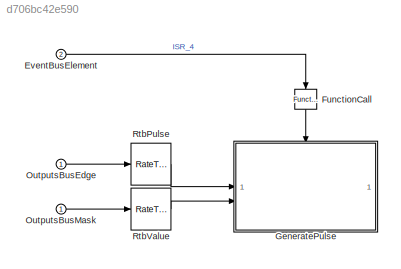
MODEL slx_d706bc42e590
KIND model
CONFIG AbsTol = auto
CONFIG EnableMultiTasking = off
CONFIG FixedStep = auto
CONFIG MaxStep = auto
CONFIG MinStep = auto
CONFIG RelTol = 1e-3
CONFIG SampleTimeConstraint = Unconstrained
CONFIG SolverName = FixedStepAuto
CONFIG StartTime = 0.0
CONFIG StopTime = Inf
BLOCK [Inport] EventBusElement
  Port = 2
BLOCK [Reference] FunctionCall  REF=simulink/Ports &
Subsystems/Function-Call
Generator
  NameLocation = left
  SourceBlock = simulink/Ports &\nSubsystems/Function-Call\nGenerator
  SourceType = Function-Call Generator
BLOCK [ModelReference] GeneratePulse
  ModelNameDialog = GeneratePulse.slx
  ModelReferenceVersion = 11.4
  TriggerPortName = call
  TriggerPortStatesWhenEnabling = held
  TriggerPortTriggerType = function-call
BLOCK [Inport] OutputsBusEdge
BLOCK [Inport] OutputsBusMask
BLOCK [RateTransition] RtbPulse
  Deterministic = off
  NameLocation = top
  OutPortSampleTime = SAMPLING_PULSE
BLOCK [RateTransition] RtbValue
  Deterministic = off
  OutPortSampleTime = SAMPLING_PULSE
LINE EventBusElement:1 -> FunctionCall:1
LINE FunctionCall:1 -> GeneratePulse:trigger
LINE OutputsBusEdge:1 -> RtbPulse:1
LINE OutputsBusMask:1 -> RtbValue:1
LINE RtbPulse:1 -> GeneratePulse:1
LINE RtbValue:1 -> GeneratePulse:2
